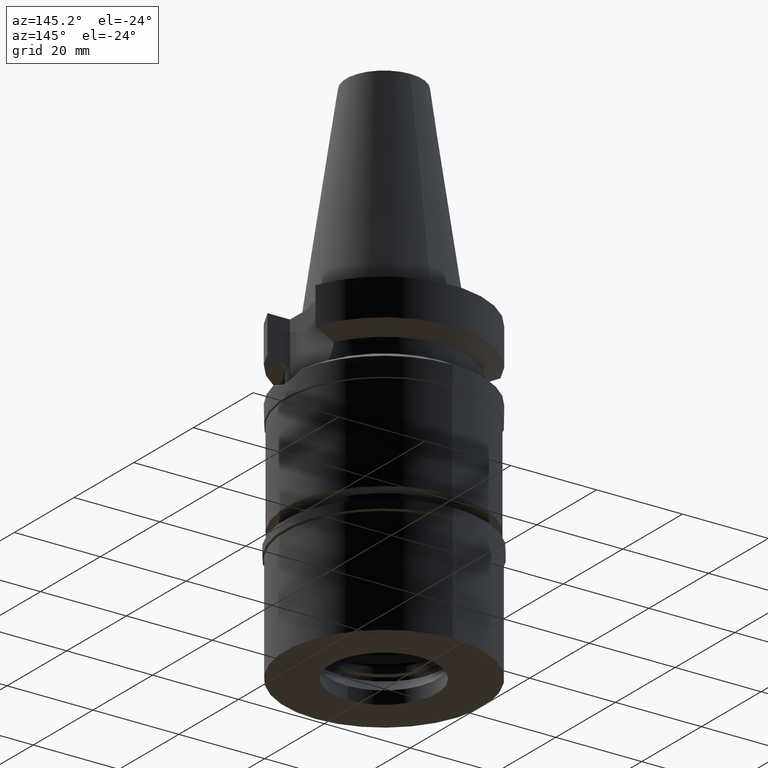
[diagram: clean part render]
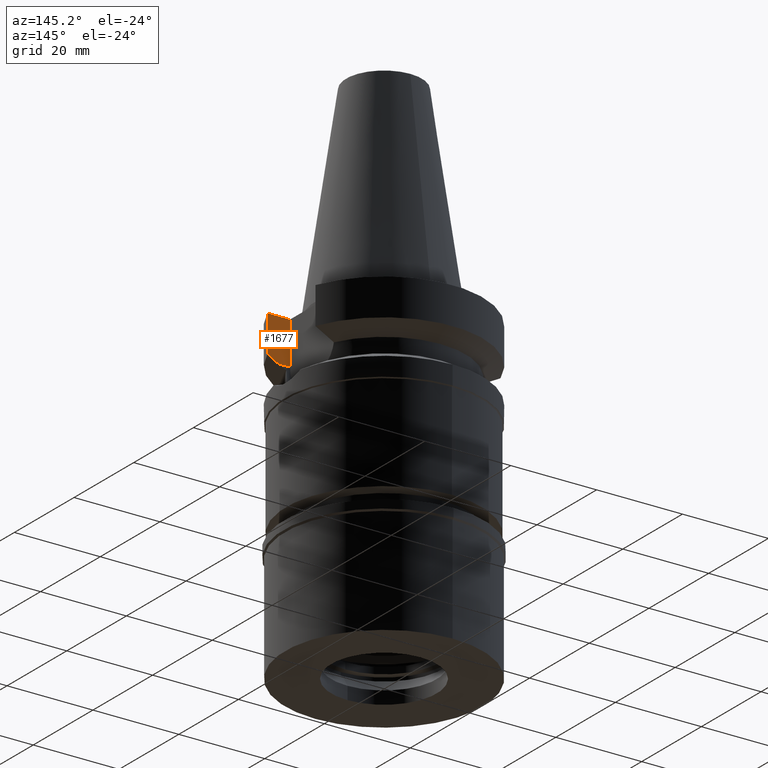
[diagram: same view with one face highlighted and labeled with its STEP entity id]
A machine part, auxiliary view. The second image highlights one B-rep face of the part: STEP entity #1677.
In plain terms, the highlighted planar face has unit normal (0, -1, 0).
Its self-contained STEP definition (entity closure, byte-faithful):
#88 = CARTESIAN_POINT ( 'NONE',  ( 21.54524309446999908, -8.050000000000000711, -1.000000000000000000 ) ) ;
#171 = EDGE_CURVE ( 'NONE', #677, #435, #181, .T. ) ;
#181 = LINE ( 'NONE', #2044, #551 ) ;
#275 = CARTESIAN_POINT ( 'NONE',  ( 18.96736186693999926, -8.050001277873001015, -10.94999977540000025 ) ) ;
#332 = CARTESIAN_POINT ( 'NONE',  ( 20.64101735201234078, -8.050004185258087475, -10.05624233374761722 ) ) ;
#435 = VERTEX_POINT ( 'NONE', #1920 ) ;
#508 = EDGE_CURVE ( 'NONE', #948, #1257, #1179, .T. ) ;
#551 = VECTOR ( 'NONE', #1782, 1000.000000000000000 ) ;
#600 = CARTESIAN_POINT ( 'NONE',  ( 16.29999999999999716, -8.050000000000000711, -10.94999999999999929 ) ) ;
#677 = VERTEX_POINT ( 'NONE', #1548 ) ;
#696 = EDGE_CURVE ( 'NONE', #948, #2889, #2260, .T. ) ;
#826 = PLANE ( 'NONE',  #2827 ) ;
#858 = ORIENTED_EDGE ( 'NONE', *, *, #696, .T. ) ;
#948 = VERTEX_POINT ( 'NONE', #2180 ) ;
#1080 = EDGE_CURVE ( 'NONE', #2889, #677, #1740, .T. ) ;
#1093 = ORIENTED_EDGE ( 'NONE', *, *, #1489, .T. ) ;
#1118 = ORIENTED_EDGE ( 'NONE', *, *, #508, .F. ) ;
#1179 = B_SPLINE_CURVE_WITH_KNOTS ( 'NONE', 3,
 ( #275, #1670, #332, #1891 ),
 .UNSPECIFIED., .F., .F.,
 ( 4, 4 ),
 ( 0.0000000000000000000, 1.000000000000000000 ),
 .UNSPECIFIED. ) ;
#1257 = VERTEX_POINT ( 'NONE', #2705 ) ;
#1261 = VECTOR ( 'NONE', #1426, 1000.000000000000114 ) ;
#1319 = DIRECTION ( 'NONE',  ( 0.0000000000000000000, 0.0000000000000000000, -1.000000000000000000 ) ) ;
#1426 = DIRECTION ( 'NONE',  ( -9.134800745262689569E-08, -2.444862507563914651E-07, -0.9999999999999659162 ) ) ;
#1489 = EDGE_CURVE ( 'NONE', #435, #1257, #2135, .T. ) ;
#1548 = CARTESIAN_POINT ( 'NONE',  ( 16.29999999999999716, -8.050000000000000711, -1.000000000000000000 ) ) ;
#1550 = CARTESIAN_POINT ( 'NONE',  ( 16.29999999999999716, -8.050000000000000711, -10.94999999999999929 ) ) ;
#1561 = CARTESIAN_POINT ( 'NONE',  ( 18.96736186693999926, -8.050001277873001015, -10.94999977540000025 ) ) ;
#1563 = VECTOR ( 'NONE', #2502, 1000.000000000000114 ) ;
#1670 = CARTESIAN_POINT ( 'NONE',  ( 19.78176446227740826, -8.050001299918182696, -10.51717305795227553 ) ) ;
#1677 = ADVANCED_FACE ( 'NONE', ( #2922 ), #826, .F. ) ;
#1740 = LINE ( 'NONE', #600, #1912 ) ;
#1782 = DIRECTION ( 'NONE',  ( 1.000000000000000000, -9.347030801892000173E-14, 0.0000000000000000000 ) ) ;
#1891 = CARTESIAN_POINT ( 'NONE',  ( 21.54524309446999908, -8.050000000002000888, -9.567208369710998639 ) ) ;
#1912 = VECTOR ( 'NONE', #2198, 1000.000000000000000 ) ;
#1920 = CARTESIAN_POINT ( 'NONE',  ( 21.54524309446999908, -8.050000000000000711, -1.000000000000000000 ) ) ;
#2044 = CARTESIAN_POINT ( 'NONE',  ( 16.29999999999999716, -8.050000000000000711, -1.000000000000000000 ) ) ;
#2135 = LINE ( 'NONE', #88, #1261 ) ;
#2162 = ORIENTED_EDGE ( 'NONE', *, *, #1080, .T. ) ;
#2179 = EDGE_LOOP ( 'NONE', ( #858, #2162, #2585, #1093, #1118 ) ) ;
#2180 = CARTESIAN_POINT ( 'NONE',  ( 18.96736186693999926, -8.050001277873001015, -10.94999977540000025 ) ) ;
#2198 = DIRECTION ( 'NONE',  ( 0.0000000000000000000, 0.0000000000000000000, 1.000000000000000000 ) ) ;
#2210 = CARTESIAN_POINT ( 'NONE',  ( 16.29999999999999716, -8.050000000000000711, -1.000000000000000000 ) ) ;
#2260 = LINE ( 'NONE', #1561, #1563 ) ;
#2452 = DIRECTION ( 'NONE',  ( 0.0000000000000000000, -1.000000000000000000, 0.0000000000000000000 ) ) ;
#2502 = DIRECTION ( 'NONE',  ( -0.9999999999998816502, 4.790775574836907576E-07, -8.420253777260848103E-08 ) ) ;
#2585 = ORIENTED_EDGE ( 'NONE', *, *, #171, .T. ) ;
#2705 = CARTESIAN_POINT ( 'NONE',  ( 21.54524309446999908, -8.050000000002000888, -9.567208369710998639 ) ) ;
#2827 = AXIS2_PLACEMENT_3D ( 'NONE', #2210, #2452, #1319 ) ;
#2889 = VERTEX_POINT ( 'NONE', #1550 ) ;
#2922 = FACE_OUTER_BOUND ( 'NONE', #2179, .T. ) ;